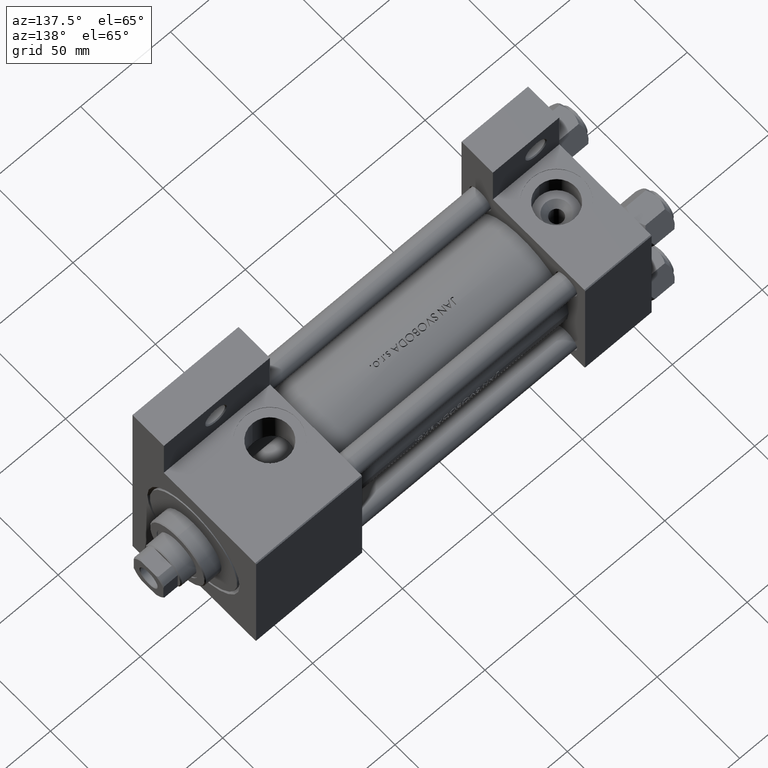
[diagram: clean part render]
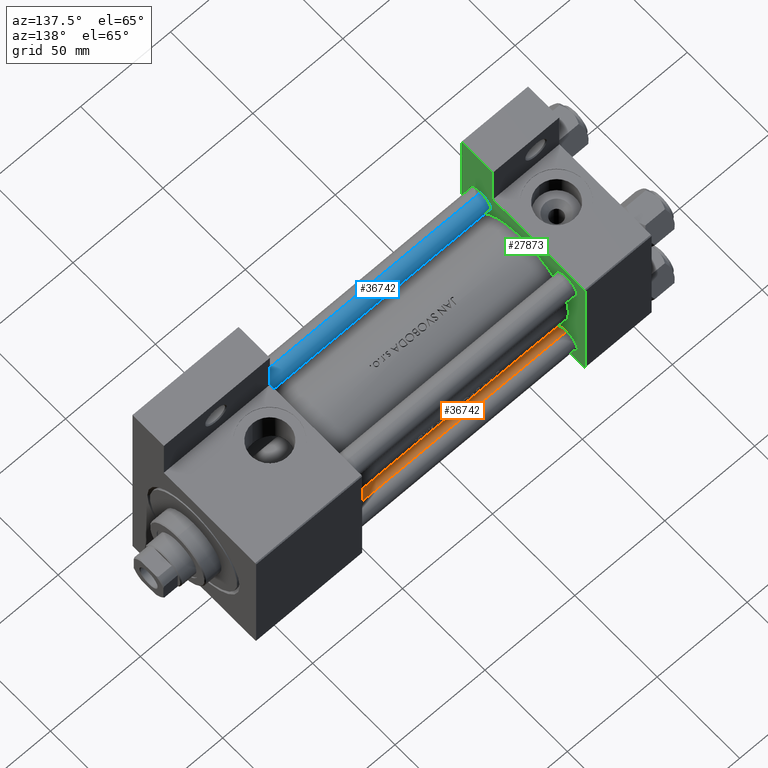
[diagram: same view with three faces highlighted in distinct colors, each labeled with its STEP entity id]
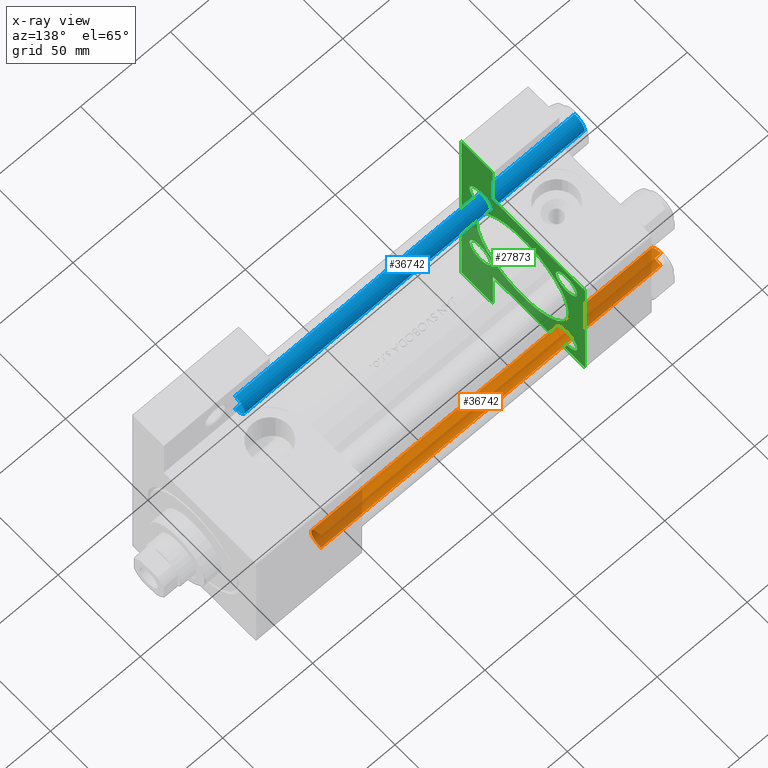
[diagram: x-ray of the same camera — body ghosted, the three highlighted faces saturated]
A machine part, auxiliary view with three faces highlighted in distinct colors.
The next image is the same camera in x-ray (body ghosted, the three faces saturated) — at least one of them is partly hidden behind the body in this view.
Their STEP definitions:

[orange] entity #36742 — the highlighted cylindrical surface (edge-blend (fillet) strip) has radius 6 mm, axis along (1, -0, -0).
#598 = DIRECTION ( 'NONE',  ( -0.000000000000000000, -0.000000000000000000, -1.000000000000000000 ) ) ;
#1664 = CARTESIAN_POINT ( 'NONE',  ( -6.000000000000000888, 0.000000000000000000, 0.4999999999999726885 ) ) ;
#3817 = LINE ( 'NONE', #18277, #47047 ) ;
#4065 = LINE ( 'NONE', #23761, #39114 ) ;
#5032 = ORIENTED_EDGE ( 'NONE', *, *, #34080, .T. ) ;
#5533 = AXIS2_PLACEMENT_3D ( 'NONE', #37049, #18595, #22841 ) ;
#7644 = VERTEX_POINT ( 'NONE', #11810 ) ;
#9521 = AXIS2_PLACEMENT_3D ( 'NONE', #44364, #25439, #35935 ) ;
#9655 = CARTESIAN_POINT ( 'NONE',  ( 0.000000000000000000, 0.000000000000000000, 0.4999999999999726885 ) ) ;
#10416 = CARTESIAN_POINT ( 'NONE',  ( -6.000000000000000888, 0.000000000000000000, 189.5000000000000000 ) ) ;
#11366 = FACE_OUTER_BOUND ( 'NONE', #16303, .T. ) ;
#11434 = AXIS2_PLACEMENT_3D ( 'NONE', #9655, #20626, #25098 ) ;
#11810 = CARTESIAN_POINT ( 'NONE',  ( 6.000000000000000888, 7.347880794884120722E-16, 189.5000000000000000 ) ) ;
#11949 = EDGE_CURVE ( 'NONE', #27651, #45937, #20997, .T. ) ;
#16303 = EDGE_LOOP ( 'NONE', ( #28190, #5032, #19779, #30338 ) ) ;
#18277 = CARTESIAN_POINT ( 'NONE',  ( 6.000000000000000888, 7.347880794884120722E-16, 190.0000000000000000 ) ) ;
#18595 = DIRECTION ( 'NONE',  ( -0.000000000000000000, -0.000000000000000000, -1.000000000000000000 ) ) ;
#19779 = ORIENTED_EDGE ( 'NONE', *, *, #41727, .T. ) ;
#20626 = DIRECTION ( 'NONE',  ( -0.000000000000000000, -0.000000000000000000, 1.000000000000000000 ) ) ;
#20997 = CIRCLE ( 'NONE', #11434, 6.000000000000000888 ) ;
#22764 = DIRECTION ( 'NONE',  ( -0.000000000000000000, -0.000000000000000000, -1.000000000000000000 ) ) ;
#22841 = DIRECTION ( 'NONE',  ( -1.000000000000000000, 0.000000000000000000, 0.000000000000000000 ) ) ;
#23761 = CARTESIAN_POINT ( 'NONE',  ( -6.000000000000000888, 0.000000000000000000, 190.0000000000000000 ) ) ;
#25098 = DIRECTION ( 'NONE',  ( 1.000000000000000000, 0.000000000000000000, 0.000000000000000000 ) ) ;
#25439 = DIRECTION ( 'NONE',  ( 0.000000000000000000, 0.000000000000000000, -1.000000000000000000 ) ) ;
#25525 = VERTEX_POINT ( 'NONE', #10416 ) ;
#27651 = VERTEX_POINT ( 'NONE', #1664 ) ;
#28190 = ORIENTED_EDGE ( 'NONE', *, *, #40843, .F. ) ;
#30338 = ORIENTED_EDGE ( 'NONE', *, *, #11949, .T. ) ;
#31798 = CARTESIAN_POINT ( 'NONE',  ( 6.000000000000000888, 7.347880794884120722E-16, 0.4999999999999726885 ) ) ;
#34080 = EDGE_CURVE ( 'NONE', #7644, #25525, #42133, .T. ) ;
#35935 = DIRECTION ( 'NONE',  ( 1.000000000000000000, 0.000000000000000000, 0.000000000000000000 ) ) ;
#36742 = ADVANCED_FACE ( 'NONE', ( #11366 ), #37788, .T. ) ;
#37049 = CARTESIAN_POINT ( 'NONE',  ( 0.000000000000000000, 0.000000000000000000, 190.0000000000000000 ) ) ;
#37788 = CYLINDRICAL_SURFACE ( 'NONE', #5533, 6.000000000000000888 ) ;
#39114 = VECTOR ( 'NONE', #598, 1000.000000000000000 ) ;
#40843 = EDGE_CURVE ( 'NONE', #7644, #45937, #3817, .T. ) ;
#41727 = EDGE_CURVE ( 'NONE', #25525, #27651, #4065, .T. ) ;
#42133 = CIRCLE ( 'NONE', #9521, 6.000000000000000888 ) ;
#44364 = CARTESIAN_POINT ( 'NONE',  ( 0.000000000000000000, 0.000000000000000000, 189.5000000000000000 ) ) ;
#45937 = VERTEX_POINT ( 'NONE', #31798 ) ;
#47047 = VECTOR ( 'NONE', #22764, 1000.000000000000000 ) ;

[blue] entity #36742 — the highlighted cylindrical surface (edge-blend (fillet) strip) has radius 6 mm, axis along (1, 0, 0).
#598 = DIRECTION ( 'NONE',  ( -0.000000000000000000, -0.000000000000000000, -1.000000000000000000 ) ) ;
#1664 = CARTESIAN_POINT ( 'NONE',  ( -6.000000000000000888, 0.000000000000000000, 0.4999999999999726885 ) ) ;
#3817 = LINE ( 'NONE', #18277, #47047 ) ;
#4065 = LINE ( 'NONE', #23761, #39114 ) ;
#5032 = ORIENTED_EDGE ( 'NONE', *, *, #34080, .T. ) ;
#5533 = AXIS2_PLACEMENT_3D ( 'NONE', #37049, #18595, #22841 ) ;
#7644 = VERTEX_POINT ( 'NONE', #11810 ) ;
#9521 = AXIS2_PLACEMENT_3D ( 'NONE', #44364, #25439, #35935 ) ;
#9655 = CARTESIAN_POINT ( 'NONE',  ( 0.000000000000000000, 0.000000000000000000, 0.4999999999999726885 ) ) ;
#10416 = CARTESIAN_POINT ( 'NONE',  ( -6.000000000000000888, 0.000000000000000000, 189.5000000000000000 ) ) ;
#11366 = FACE_OUTER_BOUND ( 'NONE', #16303, .T. ) ;
#11434 = AXIS2_PLACEMENT_3D ( 'NONE', #9655, #20626, #25098 ) ;
#11810 = CARTESIAN_POINT ( 'NONE',  ( 6.000000000000000888, 7.347880794884120722E-16, 189.5000000000000000 ) ) ;
#11949 = EDGE_CURVE ( 'NONE', #27651, #45937, #20997, .T. ) ;
#16303 = EDGE_LOOP ( 'NONE', ( #28190, #5032, #19779, #30338 ) ) ;
#18277 = CARTESIAN_POINT ( 'NONE',  ( 6.000000000000000888, 7.347880794884120722E-16, 190.0000000000000000 ) ) ;
#18595 = DIRECTION ( 'NONE',  ( -0.000000000000000000, -0.000000000000000000, -1.000000000000000000 ) ) ;
#19779 = ORIENTED_EDGE ( 'NONE', *, *, #41727, .T. ) ;
#20626 = DIRECTION ( 'NONE',  ( -0.000000000000000000, -0.000000000000000000, 1.000000000000000000 ) ) ;
#20997 = CIRCLE ( 'NONE', #11434, 6.000000000000000888 ) ;
#22764 = DIRECTION ( 'NONE',  ( -0.000000000000000000, -0.000000000000000000, -1.000000000000000000 ) ) ;
#22841 = DIRECTION ( 'NONE',  ( -1.000000000000000000, 0.000000000000000000, 0.000000000000000000 ) ) ;
#23761 = CARTESIAN_POINT ( 'NONE',  ( -6.000000000000000888, 0.000000000000000000, 190.0000000000000000 ) ) ;
#25098 = DIRECTION ( 'NONE',  ( 1.000000000000000000, 0.000000000000000000, 0.000000000000000000 ) ) ;
#25439 = DIRECTION ( 'NONE',  ( 0.000000000000000000, 0.000000000000000000, -1.000000000000000000 ) ) ;
#25525 = VERTEX_POINT ( 'NONE', #10416 ) ;
#27651 = VERTEX_POINT ( 'NONE', #1664 ) ;
#28190 = ORIENTED_EDGE ( 'NONE', *, *, #40843, .F. ) ;
#30338 = ORIENTED_EDGE ( 'NONE', *, *, #11949, .T. ) ;
#31798 = CARTESIAN_POINT ( 'NONE',  ( 6.000000000000000888, 7.347880794884120722E-16, 0.4999999999999726885 ) ) ;
#34080 = EDGE_CURVE ( 'NONE', #7644, #25525, #42133, .T. ) ;
#35935 = DIRECTION ( 'NONE',  ( 1.000000000000000000, 0.000000000000000000, 0.000000000000000000 ) ) ;
#36742 = ADVANCED_FACE ( 'NONE', ( #11366 ), #37788, .T. ) ;
#37049 = CARTESIAN_POINT ( 'NONE',  ( 0.000000000000000000, 0.000000000000000000, 190.0000000000000000 ) ) ;
#37788 = CYLINDRICAL_SURFACE ( 'NONE', #5533, 6.000000000000000888 ) ;
#39114 = VECTOR ( 'NONE', #598, 1000.000000000000000 ) ;
#40843 = EDGE_CURVE ( 'NONE', #7644, #45937, #3817, .T. ) ;
#41727 = EDGE_CURVE ( 'NONE', #25525, #27651, #4065, .T. ) ;
#42133 = CIRCLE ( 'NONE', #9521, 6.000000000000000888 ) ;
#44364 = CARTESIAN_POINT ( 'NONE',  ( 0.000000000000000000, 0.000000000000000000, 189.5000000000000000 ) ) ;
#45937 = VERTEX_POINT ( 'NONE', #31798 ) ;
#47047 = VECTOR ( 'NONE', #22764, 1000.000000000000000 ) ;

[green] entity #27873 — the highlighted planar face has unit normal (-1, 0, -0).
#659 = VERTEX_POINT ( 'NONE', #39762 ) ;
#677 = CARTESIAN_POINT ( 'NONE',  ( 37.00000000000000000, -26.14999999999999147, 26.15000000000000924 ) ) ;
#881 = CARTESIAN_POINT ( 'NONE',  ( 37.00000000000000000, -26.14999999999999147, -26.15000000000000924 ) ) ;
#1122 = DIRECTION ( 'NONE',  ( -1.000000000000000000, 0.000000000000000000, -0.000000000000000000 ) ) ;
#1223 = EDGE_LOOP ( 'NONE', ( #16349, #44266 ) ) ;
#1373 = VECTOR ( 'NONE', #48016, 1000.000000000000000 ) ;
#1390 = CARTESIAN_POINT ( 'NONE',  ( 37.00000000000000000, -37.50000000000000711, 37.49999999999999289 ) ) ;
#1545 = FACE_BOUND ( 'NONE', #20318, .T. ) ;
#1760 = VERTEX_POINT ( 'NONE', #23370 ) ;
#1861 = EDGE_CURVE ( 'NONE', #13879, #38512, #32330, .T. ) ;
#2049 = CIRCLE ( 'NONE', #21929, 6.499999999999974243 ) ;
#2245 = AXIS2_PLACEMENT_3D ( 'NONE', #31523, #1122, #12797 ) ;
#2277 = EDGE_CURVE ( 'NONE', #15401, #41585, #17514, .T. ) ;
#2842 = DIRECTION ( 'NONE',  ( 0.000000000000000000, 0.000000000000000000, 1.000000000000000000 ) ) ;
#2918 = CARTESIAN_POINT ( 'NONE',  ( 37.00000000000000711, 0.000000000000000000, -0.5000000000000004441 ) ) ;
#2939 = CARTESIAN_POINT ( 'NONE',  ( 37.00000000000000711, 3.429011037612589276E-15, -28.50000000000000000 ) ) ;
#3088 = CARTESIAN_POINT ( 'NONE',  ( 37.00000000000000711, 0.000000000000000000, -0.5000000000000004441 ) ) ;
#3432 = AXIS2_PLACEMENT_3D ( 'NONE', #2918, #37536, #45002 ) ;
#3543 = CARTESIAN_POINT ( 'NONE',  ( 37.00000000000000000, 37.49999999999999289, 37.00000000000000000 ) ) ;
#3797 = CARTESIAN_POINT ( 'NONE',  ( 37.00000000000001421, 63.50000000000000000, -37.50000000000002132 ) ) ;
#3877 = VERTEX_POINT ( 'NONE', #35134 ) ;
#4147 = DIRECTION ( 'NONE',  ( -1.000000000000000000, 0.000000000000000000, -0.000000000000000000 ) ) ;
#4264 = CARTESIAN_POINT ( 'NONE',  ( 37.00000000000000000, -63.49999999999998579, -18.50000000000000355 ) ) ;
#4277 = AXIS2_PLACEMENT_3D ( 'NONE', #677, #4147, #20095 ) ;
#4465 = CARTESIAN_POINT ( 'NONE',  ( 37.00000000000001421, 63.50000000000000000, -18.50000000000000355 ) ) ;
#4882 = CARTESIAN_POINT ( 'NONE',  ( 37.00000000000000000, 36.99999999999999289, 37.50000000000000000 ) ) ;
#5972 = VECTOR ( 'NONE', #43213, 1000.000000000000000 ) ;
#6055 = EDGE_CURVE ( 'NONE', #7962, #28127, #47073, .T. ) ;
#6064 = EDGE_CURVE ( 'NONE', #38512, #3877, #26012, .T. ) ;
#6394 = ORIENTED_EDGE ( 'NONE', *, *, #6055, .F. ) ;
#6795 = CARTESIAN_POINT ( 'NONE',  ( 37.00000000000000000, 26.14999999999999858, -26.15000000000000213 ) ) ;
#7481 = CIRCLE ( 'NONE', #38543, 6.499999999999974243 ) ;
#7516 = VECTOR ( 'NONE', #19516, 1000.000000000000000 ) ;
#7779 = DIRECTION ( 'NONE',  ( 0.000000000000000000, 0.000000000000000000, 1.000000000000000000 ) ) ;
#7867 = VERTEX_POINT ( 'NONE', #3543 ) ;
#7871 = ORIENTED_EDGE ( 'NONE', *, *, #16459, .T. ) ;
#7962 = VERTEX_POINT ( 'NONE', #2939 ) ;
#8062 = CARTESIAN_POINT ( 'NONE',  ( 37.00000000000001421, 63.50000000000001421, -18.50000000000000355 ) ) ;
#9205 = EDGE_LOOP ( 'NONE', ( #24910, #26833 ) ) ;
#9320 = VECTOR ( 'NONE', #38157, 1000.000000000000000 ) ;
#9347 = CARTESIAN_POINT ( 'NONE',  ( 37.00000000000000000, 26.14999999999999858, 19.65000000000002345 ) ) ;
#9416 = CARTESIAN_POINT ( 'NONE',  ( 37.00000000000000000, -26.14999999999999147, -19.65000000000000924 ) ) ;
#9490 = FACE_BOUND ( 'NONE', #12163, .T. ) ;
#10184 = CARTESIAN_POINT ( 'NONE',  ( 37.00000000000000000, 26.14999999999999858, -19.65000000000002700 ) ) ;
#11525 = DIRECTION ( 'NONE',  ( 0.000000000000000000, 0.000000000000000000, 1.000000000000000000 ) ) ;
#11554 = VECTOR ( 'NONE', #46236, 1000.000000000000114 ) ;
#12163 = EDGE_LOOP ( 'NONE', ( #7871, #45511 ) ) ;
#12621 = EDGE_CURVE ( 'NONE', #18863, #26338, #7481, .T. ) ;
#12732 = PLANE ( 'NONE',  #18874 ) ;
#12797 = DIRECTION ( 'NONE',  ( 0.000000000000000000, 0.000000000000000000, 1.000000000000000000 ) ) ;
#12984 = FACE_BOUND ( 'NONE', #9205, .T. ) ;
#13388 = CARTESIAN_POINT ( 'NONE',  ( 37.00000000000000000, 26.14999999999999858, 26.15000000000000213 ) ) ;
#13416 = EDGE_CURVE ( 'NONE', #23301, #13879, #42187, .T. ) ;
#13879 = VERTEX_POINT ( 'NONE', #4465 ) ;
#14284 = CARTESIAN_POINT ( 'NONE',  ( 37.00000000000000000, 37.49999999999999289, -37.50000000000000000 ) ) ;
#14351 = CARTESIAN_POINT ( 'NONE',  ( 37.00000000000000000, -37.50000000000000711, 36.99999999999999289 ) ) ;
#14463 = CARTESIAN_POINT ( 'NONE',  ( 37.00000000000000711, 37.50000000000000711, -18.50000000000000355 ) ) ;
#14858 = DIRECTION ( 'NONE',  ( 0.000000000000000000, -1.734723475976806848E-16, -1.000000000000000000 ) ) ;
#14906 = EDGE_LOOP ( 'NONE', ( #43532, #30319 ) ) ;
#14980 = LINE ( 'NONE', #4264, #9320 ) ;
#15024 = CIRCLE ( 'NONE', #42887, 6.500000000000002665 ) ;
#15401 = VERTEX_POINT ( 'NONE', #38875 ) ;
#16087 = ORIENTED_EDGE ( 'NONE', *, *, #13416, .F. ) ;
#16349 = ORIENTED_EDGE ( 'NONE', *, *, #37726, .T. ) ;
#16427 = ORIENTED_EDGE ( 'NONE', *, *, #42628, .T. ) ;
#16459 = EDGE_CURVE ( 'NONE', #41585, #15401, #2049, .T. ) ;
#16618 = VERTEX_POINT ( 'NONE', #14351 ) ;
#17138 = ORIENTED_EDGE ( 'NONE', *, *, #45596, .F. ) ;
#17320 = LINE ( 'NONE', #25291, #31274 ) ;
#17514 = CIRCLE ( 'NONE', #45358, 6.499999999999974243 ) ;
#17651 = VECTOR ( 'NONE', #30118, 1000.000000000000000 ) ;
#18524 = DIRECTION ( 'NONE',  ( 1.000000000000000000, -0.000000000000000000, 0.000000000000000000 ) ) ;
#18759 = CARTESIAN_POINT ( 'NONE',  ( 37.00000000000000000, 26.14999999999999858, 26.15000000000000213 ) ) ;
#18863 = VERTEX_POINT ( 'NONE', #10184 ) ;
#18874 = AXIS2_PLACEMENT_3D ( 'NONE', #35918, #31942, #38228 ) ;
#19363 = CIRCLE ( 'NONE', #3432, 28.00000000000000000 ) ;
#19380 = LINE ( 'NONE', #41057, #17651 ) ;
#19469 = VERTEX_POINT ( 'NONE', #20555 ) ;
#19516 = DIRECTION ( 'NONE',  ( 2.668805347656626678E-16, 1.000000000000000000, 0.000000000000000000 ) ) ;
#20095 = DIRECTION ( 'NONE',  ( 0.000000000000000000, 0.000000000000000000, 1.000000000000000000 ) ) ;
#20318 = EDGE_LOOP ( 'NONE', ( #17138, #6394 ) ) ;
#20555 = CARTESIAN_POINT ( 'NONE',  ( 37.00000000000000000, -26.14999999999999147, 32.65000000000001990 ) ) ;
#20836 = VERTEX_POINT ( 'NONE', #28180 ) ;
#20867 = DIRECTION ( 'NONE',  ( 0.000000000000000000, 0.000000000000000000, 1.000000000000000000 ) ) ;
#21509 = ORIENTED_EDGE ( 'NONE', *, *, #44520, .T. ) ;
#21750 = EDGE_CURVE ( 'NONE', #22105, #659, #44941, .T. ) ;
#21774 = CARTESIAN_POINT ( 'NONE',  ( 37.00000000000000000, 26.14999999999999858, -26.15000000000000213 ) ) ;
#21929 = AXIS2_PLACEMENT_3D ( 'NONE', #13388, #24859, #20867 ) ;
#22105 = VERTEX_POINT ( 'NONE', #9416 ) ;
#22245 = EDGE_CURVE ( 'NONE', #7867, #20836, #23828, .T. ) ;
#22428 = VERTEX_POINT ( 'NONE', #39881 ) ;
#22754 = DIRECTION ( 'NONE',  ( -1.000000000000000000, 0.000000000000000000, -0.000000000000000000 ) ) ;
#22976 = EDGE_CURVE ( 'NONE', #16618, #22428, #28780, .T. ) ;
#23301 = VERTEX_POINT ( 'NONE', #14463 ) ;
#23370 = CARTESIAN_POINT ( 'NONE',  ( 37.00000000000000000, -63.50000000000000000, -18.50000000000000355 ) ) ;
#23828 = LINE ( 'NONE', #4882, #11554 ) ;
#24004 = AXIS2_PLACEMENT_3D ( 'NONE', #3088, #18524, #29512 ) ;
#24041 = DIRECTION ( 'NONE',  ( -1.000000000000000000, 0.000000000000000000, -0.000000000000000000 ) ) ;
#24520 = VERTEX_POINT ( 'NONE', #29168 ) ;
#24859 = DIRECTION ( 'NONE',  ( -1.000000000000000000, 0.000000000000000000, -0.000000000000000000 ) ) ;
#24910 = ORIENTED_EDGE ( 'NONE', *, *, #31931, .T. ) ;
#25291 = CARTESIAN_POINT ( 'NONE',  ( 37.00000000000000000, -37.50000000000000711, 36.99999999999999289 ) ) ;
#26012 = LINE ( 'NONE', #14284, #37503 ) ;
#26338 = VERTEX_POINT ( 'NONE', #37611 ) ;
#26833 = ORIENTED_EDGE ( 'NONE', *, *, #21750, .T. ) ;
#27022 = EDGE_CURVE ( 'NONE', #1760, #22428, #14980, .T. ) ;
#27194 = ORIENTED_EDGE ( 'NONE', *, *, #1861, .F. ) ;
#27411 = EDGE_CURVE ( 'NONE', #7867, #23301, #29123, .T. ) ;
#27873 = ADVANCED_FACE ( 'NONE', ( #12984, #42886, #46874, #9490, #1545, #28207 ), #12732, .F. ) ;
#28127 = VERTEX_POINT ( 'NONE', #40606 ) ;
#28180 = CARTESIAN_POINT ( 'NONE',  ( 37.00000000000000000, 36.99999999999999289, 37.50000000000000000 ) ) ;
#28207 = FACE_OUTER_BOUND ( 'NONE', #35624, .T. ) ;
#28780 = LINE ( 'NONE', #1390, #5972 ) ;
#28876 = CARTESIAN_POINT ( 'NONE',  ( 37.00000000000000000, 37.49999999999999289, 37.50000000000000000 ) ) ;
#28983 = EDGE_CURVE ( 'NONE', #24520, #19469, #42828, .T. ) ;
#29123 = LINE ( 'NONE', #28876, #1373 ) ;
#29168 = CARTESIAN_POINT ( 'NONE',  ( 37.00000000000000000, -26.14999999999999147, 19.65000000000000213 ) ) ;
#29512 = DIRECTION ( 'NONE',  ( 0.000000000000000000, 0.000000000000000000, 1.000000000000000000 ) ) ;
#29733 = CARTESIAN_POINT ( 'NONE',  ( 37.00000000000000000, -37.00000000000000711, 37.49999999999999289 ) ) ;
#29951 = VERTEX_POINT ( 'NONE', #29733 ) ;
#30118 = DIRECTION ( 'NONE',  ( 0.000000000000000000, -1.000000000000000000, -9.251858538542971581E-17 ) ) ;
#30248 = DIRECTION ( 'NONE',  ( 0.000000000000000000, -1.000000000000000000, -9.251858538542972814E-17 ) ) ;
#30319 = ORIENTED_EDGE ( 'NONE', *, *, #46658, .T. ) ;
#30395 = ORIENTED_EDGE ( 'NONE', *, *, #22245, .T. ) ;
#30690 = CARTESIAN_POINT ( 'NONE',  ( 37.00000000000000000, -26.14999999999999147, -26.15000000000000924 ) ) ;
#31057 = AXIS2_PLACEMENT_3D ( 'NONE', #6795, #46132, #7779 ) ;
#31064 = ORIENTED_EDGE ( 'NONE', *, *, #27022, .F. ) ;
#31274 = VECTOR ( 'NONE', #48188, 1000.000000000000114 ) ;
#31399 = ORIENTED_EDGE ( 'NONE', *, *, #44876, .T. ) ;
#31523 = CARTESIAN_POINT ( 'NONE',  ( 37.00000000000000000, -26.14999999999999147, 26.15000000000000924 ) ) ;
#31931 = EDGE_CURVE ( 'NONE', #659, #22105, #15024, .T. ) ;
#31942 = DIRECTION ( 'NONE',  ( -1.000000000000000000, 0.000000000000000000, -0.000000000000000000 ) ) ;
#32330 = LINE ( 'NONE', #47500, #40661 ) ;
#32344 = ORIENTED_EDGE ( 'NONE', *, *, #22976, .T. ) ;
#33813 = LINE ( 'NONE', #48983, #48714 ) ;
#35134 = CARTESIAN_POINT ( 'NONE',  ( 37.00000000000000000, -63.50000000000000000, -37.49999999999999289 ) ) ;
#35624 = EDGE_LOOP ( 'NONE', ( #16427, #31399, #32344, #31064, #21509, #38100, #27194, #16087, #41504, #30395 ) ) ;
#35752 = DIRECTION ( 'NONE',  ( 0.000000000000000000, 0.000000000000000000, 1.000000000000000000 ) ) ;
#35918 = CARTESIAN_POINT ( 'NONE',  ( 37.00000000000000000, 0.000000000000000000, 0.000000000000000000 ) ) ;
#36300 = DIRECTION ( 'NONE',  ( 0.000000000000000000, -1.734723475976806848E-16, -1.000000000000000000 ) ) ;
#36976 = DIRECTION ( 'NONE',  ( -1.000000000000000000, 0.000000000000000000, -0.000000000000000000 ) ) ;
#37503 = VECTOR ( 'NONE', #30248, 1000.000000000000000 ) ;
#37536 = DIRECTION ( 'NONE',  ( 1.000000000000000000, -0.000000000000000000, 0.000000000000000000 ) ) ;
#37611 = CARTESIAN_POINT ( 'NONE',  ( 37.00000000000000000, 26.14999999999999858, -32.64999999999997726 ) ) ;
#37726 = EDGE_CURVE ( 'NONE', #26338, #18863, #39785, .T. ) ;
#38100 = ORIENTED_EDGE ( 'NONE', *, *, #6064, .F. ) ;
#38143 = DIRECTION ( 'NONE',  ( 0.000000000000000000, 0.000000000000000000, 1.000000000000000000 ) ) ;
#38157 = DIRECTION ( 'NONE',  ( -0.000000000000000000, 1.000000000000000000, 0.000000000000000000 ) ) ;
#38228 = DIRECTION ( 'NONE',  ( -0.000000000000000000, 0.000000000000000000, 1.000000000000000000 ) ) ;
#38512 = VERTEX_POINT ( 'NONE', #3797 ) ;
#38543 = AXIS2_PLACEMENT_3D ( 'NONE', #21774, #36976, #2842 ) ;
#38875 = CARTESIAN_POINT ( 'NONE',  ( 37.00000000000000000, 26.14999999999999858, 32.64999999999998437 ) ) ;
#39762 = CARTESIAN_POINT ( 'NONE',  ( 37.00000000000000000, -26.14999999999999147, -32.65000000000001279 ) ) ;
#39785 = CIRCLE ( 'NONE', #31057, 6.499999999999974243 ) ;
#39881 = CARTESIAN_POINT ( 'NONE',  ( 37.00000000000000000, -37.50000000000000000, -18.50000000000000355 ) ) ;
#40606 = CARTESIAN_POINT ( 'NONE',  ( 37.00000000000000711, 0.000000000000000000, 27.50000000000000000 ) ) ;
#40661 = VECTOR ( 'NONE', #36300, 1000.000000000000000 ) ;
#41057 = CARTESIAN_POINT ( 'NONE',  ( 37.00000000000000000, 37.49999999999999289, 37.50000000000000000 ) ) ;
#41504 = ORIENTED_EDGE ( 'NONE', *, *, #27411, .F. ) ;
#41585 = VERTEX_POINT ( 'NONE', #9347 ) ;
#42187 = LINE ( 'NONE', #8062, #7516 ) ;
#42628 = EDGE_CURVE ( 'NONE', #20836, #29951, #19380, .T. ) ;
#42828 = CIRCLE ( 'NONE', #2245, 6.500000000000008882 ) ;
#42886 = FACE_BOUND ( 'NONE', #1223, .T. ) ;
#42887 = AXIS2_PLACEMENT_3D ( 'NONE', #881, #24041, #35752 ) ;
#43213 = DIRECTION ( 'NONE',  ( 0.000000000000000000, 9.251858538542971581E-17, -1.000000000000000000 ) ) ;
#43349 = AXIS2_PLACEMENT_3D ( 'NONE', #30690, #46104, #38143 ) ;
#43532 = ORIENTED_EDGE ( 'NONE', *, *, #28983, .T. ) ;
#44266 = ORIENTED_EDGE ( 'NONE', *, *, #12621, .T. ) ;
#44520 = EDGE_CURVE ( 'NONE', #1760, #3877, #33813, .T. ) ;
#44876 = EDGE_CURVE ( 'NONE', #29951, #16618, #17320, .T. ) ;
#44941 = CIRCLE ( 'NONE', #43349, 6.500000000000002665 ) ;
#45002 = DIRECTION ( 'NONE',  ( 0.000000000000000000, 0.000000000000000000, 1.000000000000000000 ) ) ;
#45358 = AXIS2_PLACEMENT_3D ( 'NONE', #18759, #22754, #11525 ) ;
#45511 = ORIENTED_EDGE ( 'NONE', *, *, #2277, .T. ) ;
#45596 = EDGE_CURVE ( 'NONE', #28127, #7962, #19363, .T. ) ;
#46104 = DIRECTION ( 'NONE',  ( -1.000000000000000000, 0.000000000000000000, -0.000000000000000000 ) ) ;
#46132 = DIRECTION ( 'NONE',  ( -1.000000000000000000, 0.000000000000000000, -0.000000000000000000 ) ) ;
#46236 = DIRECTION ( 'NONE',  ( 0.000000000000000000, -0.7071067811865474617, 0.7071067811865474617 ) ) ;
#46658 = EDGE_CURVE ( 'NONE', #19469, #24520, #47248, .T. ) ;
#46874 = FACE_BOUND ( 'NONE', #14906, .T. ) ;
#47073 = CIRCLE ( 'NONE', #24004, 28.00000000000000000 ) ;
#47248 = CIRCLE ( 'NONE', #4277, 6.500000000000008882 ) ;
#47500 = CARTESIAN_POINT ( 'NONE',  ( 37.00000000000001421, 63.50000000000001421, 26.72167621838005047 ) ) ;
#48016 = DIRECTION ( 'NONE',  ( 0.000000000000000000, 0.000000000000000000, -1.000000000000000000 ) ) ;
#48188 = DIRECTION ( 'NONE',  ( -0.000000000000000000, -0.7071067811865474617, -0.7071067811865474617 ) ) ;
#48714 = VECTOR ( 'NONE', #14858, 1000.000000000000000 ) ;
#48983 = CARTESIAN_POINT ( 'NONE',  ( 37.00000000000000000, -63.49999999999998579, 26.72167621838007889 ) ) ;